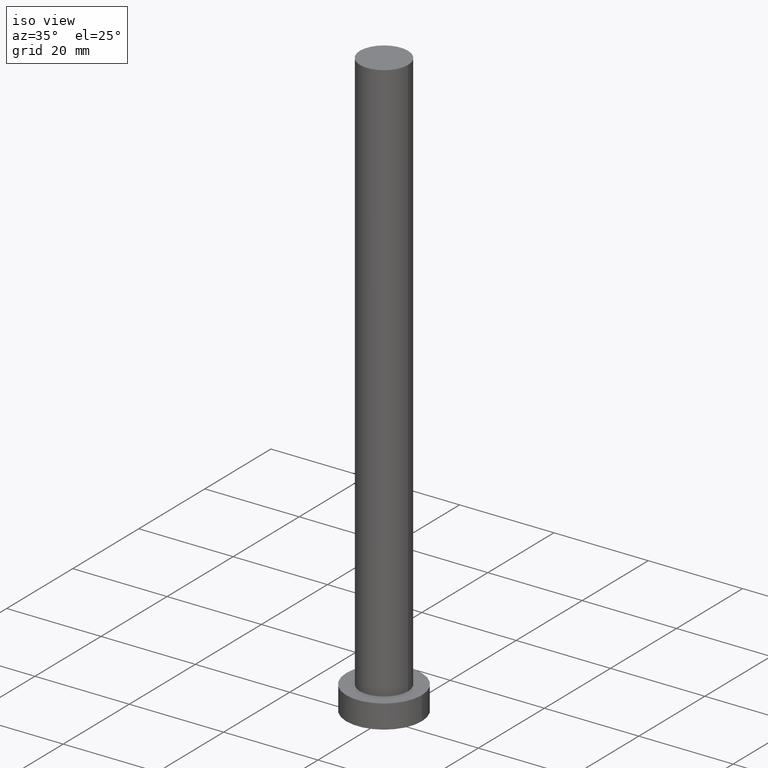
[diagram: clean part render]
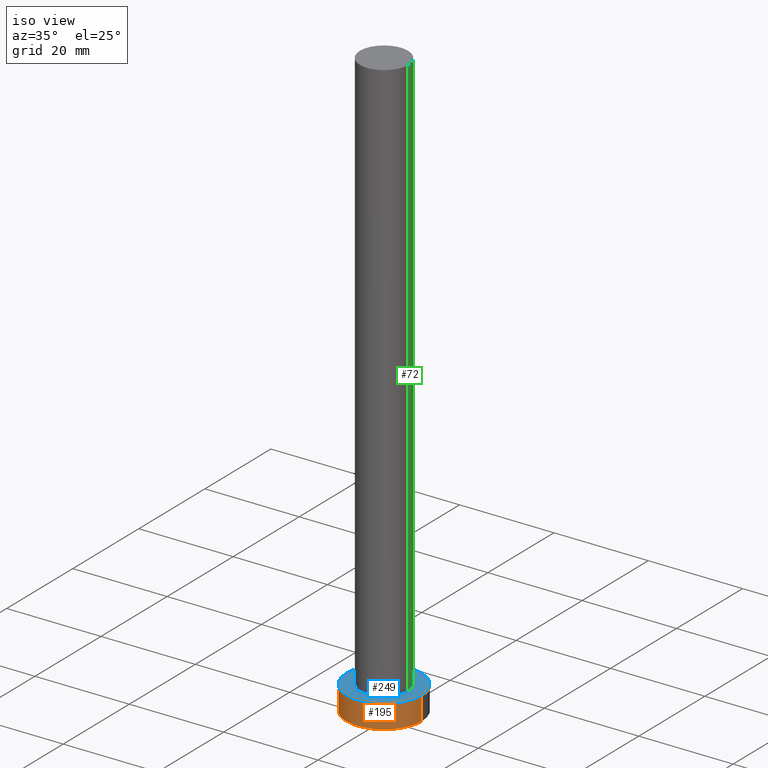
[diagram: same view with three faces highlighted in distinct colors, each labeled with its STEP entity id]
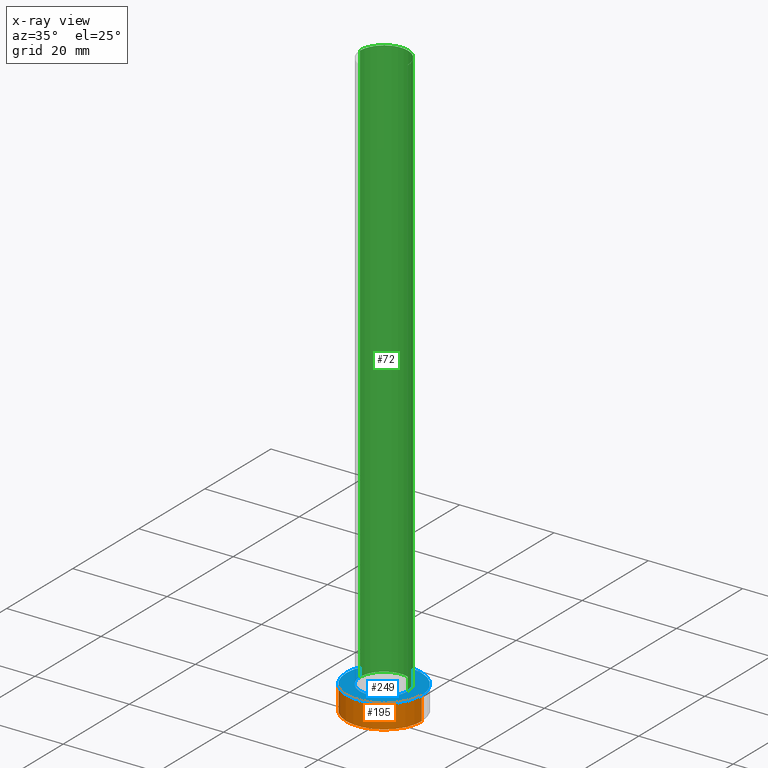
[diagram: x-ray of the same camera — body ghosted, the three highlighted faces saturated]
A machine part, iso view with three faces highlighted in distinct colors.
The next image is the same camera in x-ray (body ghosted, the three faces saturated) — at least one of them is partly hidden behind the body in this view.
Their STEP definitions:

[orange] entity #195 — the highlighted cylindrical surface (partial cylindrical patch) has radius 8 mm, axis along (-0, -0, -1).
#21 = CARTESIAN_POINT ( 'NONE',  ( -8.000000000000000000, 0.000000000000000000, 0.000000000000000000 ) ) ;
#22 = VERTEX_POINT ( 'NONE', #21 ) ;
#23 = DIRECTION ( 'NONE',  ( 1.000000000000000000, 0.000000000000000000, 0.000000000000000000 ) ) ;
#32 = CARTESIAN_POINT ( 'NONE',  ( -8.000000000000000000, 0.000000000000000000, 5.000000000000000000 ) ) ;
#36 = VERTEX_POINT ( 'NONE', #244 ) ;
#47 = VERTEX_POINT ( 'NONE', #247 ) ;
#56 = AXIS2_PLACEMENT_3D ( 'NONE', #160, #61, #23 ) ;
#57 = VECTOR ( 'NONE', #199, 1000.000000000000000 ) ;
#61 = DIRECTION ( 'NONE',  ( 0.000000000000000000, 0.000000000000000000, 1.000000000000000000 ) ) ;
#65 = DIRECTION ( 'NONE',  ( 1.000000000000000000, 0.000000000000000000, 0.000000000000000000 ) ) ;
#68 = DIRECTION ( 'NONE',  ( -1.000000000000000000, 0.000000000000000000, 0.000000000000000000 ) ) ;
#71 = CARTESIAN_POINT ( 'NONE',  ( 8.000000000000000000, 9.797174393178825657E-16, 5.000000000000000000 ) ) ;
#84 = LINE ( 'NONE', #124, #57 ) ;
#85 = FACE_OUTER_BOUND ( 'NONE', #128, .T. ) ;
#87 = ORIENTED_EDGE ( 'NONE', *, *, #142, .F. ) ;
#91 = CARTESIAN_POINT ( 'NONE',  ( 0.000000000000000000, 0.000000000000000000, 5.000000000000000000 ) ) ;
#92 = CIRCLE ( 'NONE', #178, 8.000000000000000000 ) ;
#99 = VECTOR ( 'NONE', #117, 1000.000000000000000 ) ;
#106 = DIRECTION ( 'NONE',  ( 0.000000000000000000, 0.000000000000000000, 1.000000000000000000 ) ) ;
#117 = DIRECTION ( 'NONE',  ( -0.000000000000000000, -0.000000000000000000, -1.000000000000000000 ) ) ;
#124 = CARTESIAN_POINT ( 'NONE',  ( 8.000000000000000000, 9.797174393178825657E-16, 5.000000000000000000 ) ) ;
#128 = EDGE_LOOP ( 'NONE', ( #169, #87, #144, #218 ) ) ;
#135 = LINE ( 'NONE', #32, #99 ) ;
#138 = EDGE_CURVE ( 'NONE', #22, #36, #229, .T. ) ;
#142 = EDGE_CURVE ( 'NONE', #47, #239, #92, .T. ) ;
#144 = ORIENTED_EDGE ( 'NONE', *, *, #234, .T. ) ;
#160 = CARTESIAN_POINT ( 'NONE',  ( 0.000000000000000000, 0.000000000000000000, 0.000000000000000000 ) ) ;
#161 = AXIS2_PLACEMENT_3D ( 'NONE', #91, #246, #68 ) ;
#165 = CYLINDRICAL_SURFACE ( 'NONE', #161, 8.000000000000000000 ) ;
#169 = ORIENTED_EDGE ( 'NONE', *, *, #254, .F. ) ;
#178 = AXIS2_PLACEMENT_3D ( 'NONE', #189, #106, #65 ) ;
#189 = CARTESIAN_POINT ( 'NONE',  ( 0.000000000000000000, 0.000000000000000000, 5.000000000000000000 ) ) ;
#195 = ADVANCED_FACE ( 'NONE', ( #85 ), #165, .T. ) ;
#199 = DIRECTION ( 'NONE',  ( -0.000000000000000000, -0.000000000000000000, -1.000000000000000000 ) ) ;
#218 = ORIENTED_EDGE ( 'NONE', *, *, #138, .T. ) ;
#229 = CIRCLE ( 'NONE', #56, 8.000000000000000000 ) ;
#234 = EDGE_CURVE ( 'NONE', #47, #22, #135, .T. ) ;
#239 = VERTEX_POINT ( 'NONE', #71 ) ;
#244 = CARTESIAN_POINT ( 'NONE',  ( 8.000000000000000000, 9.797174393178825657E-16, 0.000000000000000000 ) ) ;
#246 = DIRECTION ( 'NONE',  ( -0.000000000000000000, -0.000000000000000000, -1.000000000000000000 ) ) ;
#247 = CARTESIAN_POINT ( 'NONE',  ( -8.000000000000000000, 0.000000000000000000, 5.000000000000000000 ) ) ;
#254 = EDGE_CURVE ( 'NONE', #239, #36, #84, .T. ) ;

[blue] entity #249 — the highlighted planar face has unit normal (0, 0, 1).
#6 = CARTESIAN_POINT ( 'NONE',  ( 0.000000000000000000, 0.000000000000000000, 5.000000000000000000 ) ) ;
#10 = DIRECTION ( 'NONE',  ( 1.000000000000000000, 0.000000000000000000, 0.000000000000000000 ) ) ;
#11 = FACE_BOUND ( 'NONE', #204, .T. ) ;
#15 = CARTESIAN_POINT ( 'NONE',  ( 0.000000000000000000, 0.000000000000000000, 5.000000000000000000 ) ) ;
#29 = CIRCLE ( 'NONE', #167, 8.000000000000000000 ) ;
#31 = DIRECTION ( 'NONE',  ( 0.000000000000000000, 0.000000000000000000, 1.000000000000000000 ) ) ;
#33 = CIRCLE ( 'NONE', #197, 5.099999999999999645 ) ;
#47 = VERTEX_POINT ( 'NONE', #247 ) ;
#49 = DIRECTION ( 'NONE',  ( 0.000000000000000000, 0.000000000000000000, 1.000000000000000000 ) ) ;
#51 = DIRECTION ( 'NONE',  ( 1.000000000000000000, 0.000000000000000000, 0.000000000000000000 ) ) ;
#62 = ORIENTED_EDGE ( 'NONE', *, *, #80, .T. ) ;
#63 = ORIENTED_EDGE ( 'NONE', *, *, #190, .F. ) ;
#65 = DIRECTION ( 'NONE',  ( 1.000000000000000000, 0.000000000000000000, 0.000000000000000000 ) ) ;
#71 = CARTESIAN_POINT ( 'NONE',  ( 8.000000000000000000, 9.797174393178825657E-16, 5.000000000000000000 ) ) ;
#77 = ORIENTED_EDGE ( 'NONE', *, *, #212, .F. ) ;
#80 = EDGE_CURVE ( 'NONE', #239, #47, #29, .T. ) ;
#82 = VERTEX_POINT ( 'NONE', #132 ) ;
#92 = CIRCLE ( 'NONE', #178, 8.000000000000000000 ) ;
#100 = CARTESIAN_POINT ( 'NONE',  ( 5.099999999999999645, 6.245698675651500839E-16, 5.000000000000000000 ) ) ;
#102 = EDGE_LOOP ( 'NONE', ( #253, #62 ) ) ;
#106 = DIRECTION ( 'NONE',  ( 0.000000000000000000, 0.000000000000000000, 1.000000000000000000 ) ) ;
#110 = CIRCLE ( 'NONE', #115, 5.099999999999999645 ) ;
#115 = AXIS2_PLACEMENT_3D ( 'NONE', #198, #31, #153 ) ;
#127 = VERTEX_POINT ( 'NONE', #100 ) ;
#132 = CARTESIAN_POINT ( 'NONE',  ( -5.099999999999999645, 0.000000000000000000, 5.000000000000000000 ) ) ;
#136 = PLANE ( 'NONE',  #205 ) ;
#142 = EDGE_CURVE ( 'NONE', #47, #239, #92, .T. ) ;
#153 = DIRECTION ( 'NONE',  ( 1.000000000000000000, 0.000000000000000000, 0.000000000000000000 ) ) ;
#167 = AXIS2_PLACEMENT_3D ( 'NONE', #194, #232, #51 ) ;
#176 = FACE_OUTER_BOUND ( 'NONE', #102, .T. ) ;
#178 = AXIS2_PLACEMENT_3D ( 'NONE', #189, #106, #65 ) ;
#189 = CARTESIAN_POINT ( 'NONE',  ( 0.000000000000000000, 0.000000000000000000, 5.000000000000000000 ) ) ;
#190 = EDGE_CURVE ( 'NONE', #127, #82, #33, .T. ) ;
#194 = CARTESIAN_POINT ( 'NONE',  ( 0.000000000000000000, 0.000000000000000000, 5.000000000000000000 ) ) ;
#197 = AXIS2_PLACEMENT_3D ( 'NONE', #6, #49, #10 ) ;
#198 = CARTESIAN_POINT ( 'NONE',  ( 0.000000000000000000, 0.000000000000000000, 5.000000000000000000 ) ) ;
#204 = EDGE_LOOP ( 'NONE', ( #77, #63 ) ) ;
#205 = AXIS2_PLACEMENT_3D ( 'NONE', #15, #251, #219 ) ;
#212 = EDGE_CURVE ( 'NONE', #82, #127, #110, .T. ) ;
#219 = DIRECTION ( 'NONE',  ( 1.000000000000000000, 0.000000000000000000, -0.000000000000000000 ) ) ;
#232 = DIRECTION ( 'NONE',  ( 0.000000000000000000, 0.000000000000000000, 1.000000000000000000 ) ) ;
#239 = VERTEX_POINT ( 'NONE', #71 ) ;
#247 = CARTESIAN_POINT ( 'NONE',  ( -8.000000000000000000, 0.000000000000000000, 5.000000000000000000 ) ) ;
#249 = ADVANCED_FACE ( 'NONE', ( #11, #176 ), #136, .T. ) ;
#251 = DIRECTION ( 'NONE',  ( 0.000000000000000000, 0.000000000000000000, 1.000000000000000000 ) ) ;
#253 = ORIENTED_EDGE ( 'NONE', *, *, #142, .T. ) ;

[green] entity #72 — the highlighted cylindrical surface (edge-blend (fillet) strip) has radius 5.1 mm, axis along (-0, -0, -1).
#3 = DIRECTION ( 'NONE',  ( 0.000000000000000000, 0.000000000000000000, 1.000000000000000000 ) ) ;
#6 = CARTESIAN_POINT ( 'NONE',  ( 0.000000000000000000, 0.000000000000000000, 5.000000000000000000 ) ) ;
#7 = DIRECTION ( 'NONE',  ( -0.000000000000000000, -0.000000000000000000, -1.000000000000000000 ) ) ;
#10 = DIRECTION ( 'NONE',  ( 1.000000000000000000, 0.000000000000000000, 0.000000000000000000 ) ) ;
#26 = DIRECTION ( 'NONE',  ( -1.000000000000000000, 0.000000000000000000, 0.000000000000000000 ) ) ;
#33 = CIRCLE ( 'NONE', #197, 5.099999999999999645 ) ;
#37 = VECTOR ( 'NONE', #143, 1000.000000000000000 ) ;
#40 = VERTEX_POINT ( 'NONE', #89 ) ;
#43 = CARTESIAN_POINT ( 'NONE',  ( -5.099999999999999645, 0.000000000000000000, 125.0000000000000000 ) ) ;
#49 = DIRECTION ( 'NONE',  ( 0.000000000000000000, 0.000000000000000000, 1.000000000000000000 ) ) ;
#50 = CYLINDRICAL_SURFACE ( 'NONE', #139, 5.099999999999999645 ) ;
#67 = FACE_OUTER_BOUND ( 'NONE', #140, .T. ) ;
#72 = ADVANCED_FACE ( 'NONE', ( #67 ), #50, .T. ) ;
#79 = ORIENTED_EDGE ( 'NONE', *, *, #190, .T. ) ;
#82 = VERTEX_POINT ( 'NONE', #132 ) ;
#86 = EDGE_CURVE ( 'NONE', #156, #82, #163, .T. ) ;
#89 = CARTESIAN_POINT ( 'NONE',  ( 5.099999999999999645, 6.245698675651500839E-16, 125.0000000000000000 ) ) ;
#95 = EDGE_CURVE ( 'NONE', #40, #127, #207, .T. ) ;
#100 = CARTESIAN_POINT ( 'NONE',  ( 5.099999999999999645, 6.245698675651500839E-16, 5.000000000000000000 ) ) ;
#119 = ORIENTED_EDGE ( 'NONE', *, *, #170, .F. ) ;
#127 = VERTEX_POINT ( 'NONE', #100 ) ;
#130 = CARTESIAN_POINT ( 'NONE',  ( 0.000000000000000000, 0.000000000000000000, 125.0000000000000000 ) ) ;
#132 = CARTESIAN_POINT ( 'NONE',  ( -5.099999999999999645, 0.000000000000000000, 5.000000000000000000 ) ) ;
#139 = AXIS2_PLACEMENT_3D ( 'NONE', #130, #211, #26 ) ;
#140 = EDGE_LOOP ( 'NONE', ( #119, #224, #79, #172 ) ) ;
#143 = DIRECTION ( 'NONE',  ( -0.000000000000000000, -0.000000000000000000, -1.000000000000000000 ) ) ;
#156 = VERTEX_POINT ( 'NONE', #43 ) ;
#163 = LINE ( 'NONE', #213, #37 ) ;
#170 = EDGE_CURVE ( 'NONE', #40, #156, #230, .T. ) ;
#172 = ORIENTED_EDGE ( 'NONE', *, *, #86, .F. ) ;
#174 = VECTOR ( 'NONE', #7, 1000.000000000000000 ) ;
#186 = DIRECTION ( 'NONE',  ( 1.000000000000000000, 0.000000000000000000, 0.000000000000000000 ) ) ;
#187 = CARTESIAN_POINT ( 'NONE',  ( 5.099999999999999645, 6.245698675651500839E-16, 125.0000000000000000 ) ) ;
#190 = EDGE_CURVE ( 'NONE', #127, #82, #33, .T. ) ;
#197 = AXIS2_PLACEMENT_3D ( 'NONE', #6, #49, #10 ) ;
#207 = LINE ( 'NONE', #187, #174 ) ;
#211 = DIRECTION ( 'NONE',  ( -0.000000000000000000, -0.000000000000000000, -1.000000000000000000 ) ) ;
#213 = CARTESIAN_POINT ( 'NONE',  ( -5.099999999999999645, 0.000000000000000000, 125.0000000000000000 ) ) ;
#214 = AXIS2_PLACEMENT_3D ( 'NONE', #228, #3, #186 ) ;
#224 = ORIENTED_EDGE ( 'NONE', *, *, #95, .T. ) ;
#228 = CARTESIAN_POINT ( 'NONE',  ( 0.000000000000000000, 0.000000000000000000, 125.0000000000000000 ) ) ;
#230 = CIRCLE ( 'NONE', #214, 5.099999999999999645 ) ;